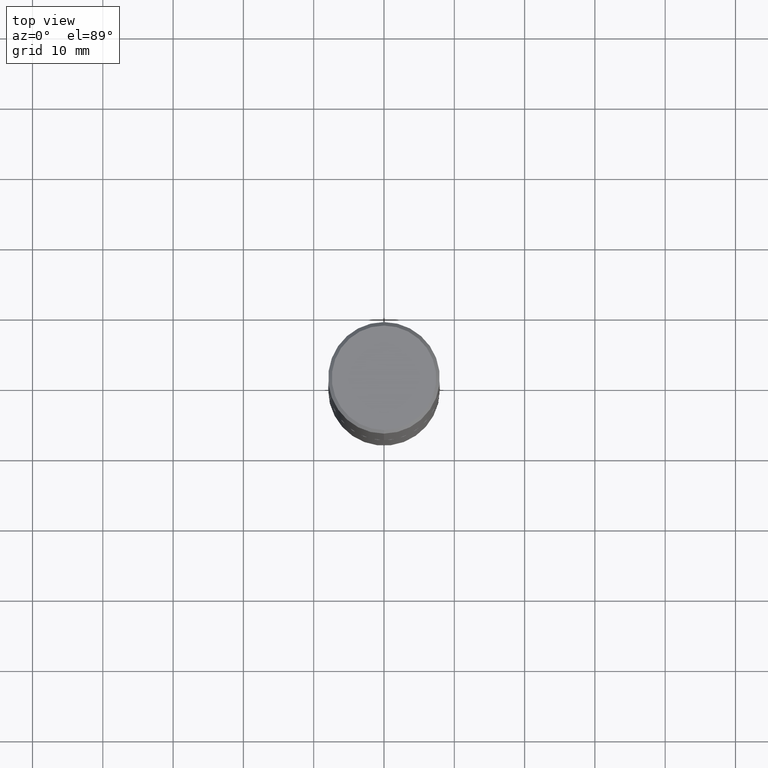
[diagram: clean part render]
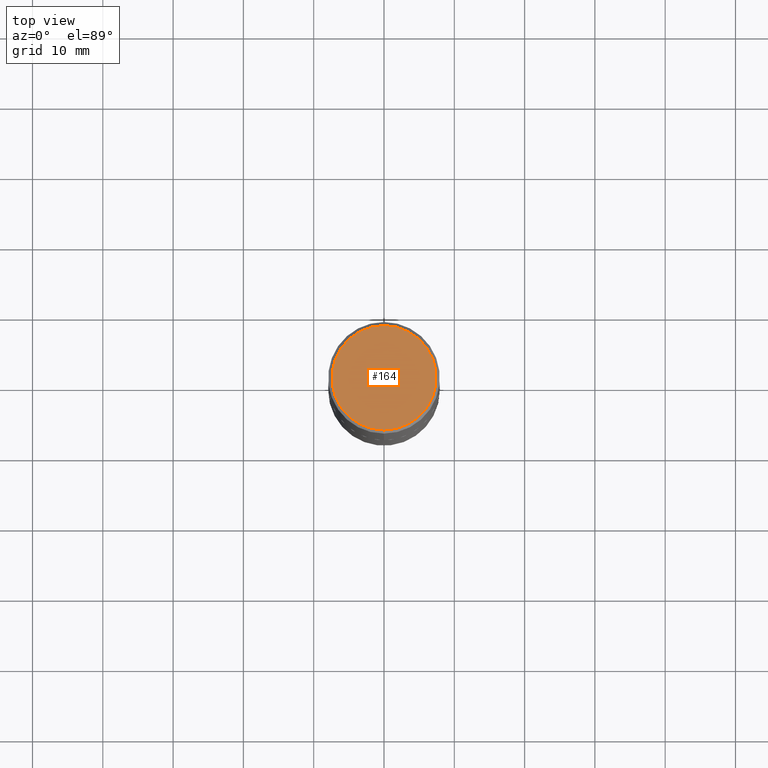
[diagram: same view with one face highlighted and labeled with its STEP entity id]
A machine part, top view. The second image highlights one B-rep face of the part: STEP entity #164.
In plain terms, the highlighted planar face has unit normal (0, -0, -1).
Its self-contained STEP definition (entity closure, byte-faithful):
#6 = EDGE_CURVE ( 'NONE', #357, #182, #71, .T. ) ;
#28 = DIRECTION ( 'NONE',  ( -6.982962677686265133E-15, -1.000000000000000000, 3.492364022149836753E-15 ) ) ;
#51 = DIRECTION ( 'NONE',  ( -6.982962677686265133E-15, -1.000000000000000000, 3.492364022149836753E-15 ) ) ;
#63 = DIRECTION ( 'NONE',  ( 6.982962677686265922E-15, 1.000000000000000000, -3.492364022149836358E-15 ) ) ;
#71 = CIRCLE ( 'NONE', #169, 0.2924999999999999822 ) ;
#94 = DIRECTION ( 'NONE',  ( 2.444852431726452333E-29, -3.492364022149836358E-15, -1.000000000000000000 ) ) ;
#98 = CARTESIAN_POINT ( 'NONE',  ( 2.112346210000095838E-15, 0.2924999999999999822, -1.012721266631419361E-15 ) ) ;
#109 = EDGE_CURVE ( 'NONE', #182, #357, #222, .T. ) ;
#164 = ADVANCED_FACE ( 'NONE', ( #279 ), #412, .F. ) ;
#166 = ORIENTED_EDGE ( 'NONE', *, *, #109, .T. ) ;
#169 = AXIS2_PLACEMENT_3D ( 'NONE', #368, #294, #51 ) ;
#170 = EDGE_LOOP ( 'NONE', ( #166, #187 ) ) ;
#178 = AXIS2_PLACEMENT_3D ( 'NONE', #379, #94, #63 ) ;
#182 = VERTEX_POINT ( 'NONE', #98 ) ;
#187 = ORIENTED_EDGE ( 'NONE', *, *, #6, .T. ) ;
#194 = AXIS2_PLACEMENT_3D ( 'NONE', #338, #372, #28 ) ;
#222 = CIRCLE ( 'NONE', #194, 0.2924999999999999822 ) ;
#275 = CARTESIAN_POINT ( 'NONE',  ( -2.075300644325887493E-15, -0.2924999999999999822, 1.030311686326234990E-15 ) ) ;
#279 = FACE_OUTER_BOUND ( 'NONE', #170, .T. ) ;
#294 = DIRECTION ( 'NONE',  ( -2.444852431726452894E-29, 3.492364022149836358E-15, 1.000000000000000000 ) ) ;
#338 = CARTESIAN_POINT ( 'NONE',  ( -2.150299018297948745E-46, 3.071607443834507134E-32, 8.795209847407834549E-18 ) ) ;
#357 = VERTEX_POINT ( 'NONE', #275 ) ;
#368 = CARTESIAN_POINT ( 'NONE',  ( -2.150299018297948745E-46, 3.071607443834507134E-32, 8.795209847407834549E-18 ) ) ;
#372 = DIRECTION ( 'NONE',  ( -2.444852431726452894E-29, 3.492364022149836358E-15, 1.000000000000000000 ) ) ;
#379 = CARTESIAN_POINT ( 'NONE',  ( 2.042516583223232540E-15, 0.2924999999999999822, -1.017118871555123169E-15 ) ) ;
#412 = PLANE ( 'NONE',  #178 ) ;